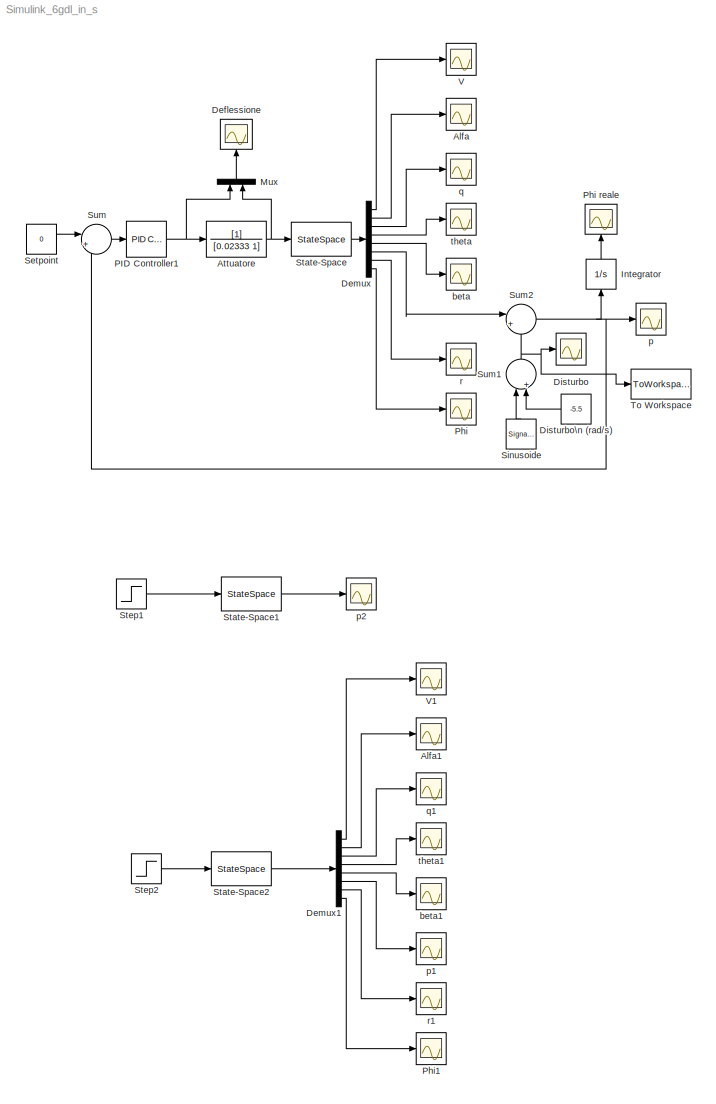
MODEL Simulink_6gdl_in_s
KIND model
BLOCK [Scope] Alfa
  DataFormat = StructureWithTime
  Floating = off
  NumInputPorts = 1
  Ports = [1]
  SID = 9
  SampleTime = 0
  SaveName = ScopeData1
  ZoomMode = yonly
BLOCK [Scope] Alfa1
  DataFormat = StructureWithTime
  Floating = off
  NumInputPorts = 1
  Ports = [1]
  SID = 97
  SampleTime = 0
  SaveName = ScopeData12
  ZoomMode = yonly
BLOCK [TransferFcn] Attuatore
  Denominator = [0.02333 1]
  SID = 50
BLOCK [Scope] Deflessione
  DataFormat = StructureWithTime
  Floating = off
  NumInputPorts = 1
  Ports = [1]
  SID = 76
  SampleTime = 0
  SaveName = ScopeData10
BLOCK [Demux] Demux
  DisplayOption = bar
  Outputs = 8
  Ports = [1, 8]
  SID = 4
BLOCK [Demux] Demux1
  DisplayOption = bar
  Outputs = 8
  Ports = [1, 8]
  SID = 98
BLOCK [Scope] Disturbo
  DataFormat = StructureWithTime
  Floating = off
  LimitDataPoints = off
  NumInputPorts = 1
  Ports = [1]
  SID = 65
  SampleTime = 0
  SaveName = ScopeData9
  TimeRange = 10
  YMax = -5
  YMin = -6
BLOCK [Constant] Disturbo\n (rad//s)
  SID = 55
  Value = -5.5
BLOCK [Integrator] Integrator
  Ports = [1, 1]
  SID = 77
BLOCK [Mux] Mux
  DisplayOption = bar
  Inputs = 2
  Ports = [2, 1]
  SID = 52
BLOCK [Reference] PID Controller1  REF=simulink/Continuous/PID Controller
  AntiWindupMode = clamping
  Controller = PID
  D = 0.0233
  DOutDataTypeStr = Inherit: Inherit via internal rule
  DOutMax = []
  DOutMin = []
  DParamDataTypeStr = Inherit: Inherit via internal rule
  DParamMax = []
  DParamMin = []
  ExternalReset = none
  FilterContinuousStateAttributes = ''
  FilterMethod = Forward Euler
  FilterOutDataTypeStr = Inherit: Inherit via internal rule
  FilterOutMax = []
  FilterOutMin = []
  FilterRTWStateStorageClass = Auto
  FilterStateMustResolveToSignalObject = off
  Form = Parallel
  I = 0.3
  IOutDataTypeStr = Inherit: Inherit via internal rule
  IOutMax = []
  IOutMin = []
  IParamDataTypeStr = Inherit: Inherit via internal rule
  IParamMax = []
  IParamMin = []
  IgnoreLimit = off
  InitialConditionForFilter = 0
  InitialConditionForIntegrator = 0
  InitialConditionSource = internal
  IntegratorContinuousStateAttributes = ''
  IntegratorMethod = Forward Euler
  IntegratorOutDataTypeStr = Inherit: Inherit via internal rule
  IntegratorOutMax = []
  IntegratorOutMin = []
  IntegratorRTWStateStorageClass = Auto
  IntegratorStateMustResolveToSignalObject = off
  Kb = 1
  KbOutDataTypeStr = Inherit: Inherit via internal rule
  KbOutMax = []
  KbOutMin = []
  KbParamDataTypeStr = Inherit: Inherit via internal rule
  KbParamMax = []
  KbParamMin = []
  Kt = 1
  KtOutDataTypeStr = Inherit: Inherit via internal rule
  KtOutMax = []
  KtOutMin = []
  KtParamDataTypeStr = Inherit: Inherit via internal rule
  KtParamMax = []
  KtParamMin = []
  LimitOutput = on
  LinearizeAsGain = off
  LockScale = off
  LowerSaturationLimit = -0.175
  N = 1
  NOutDataTypeStr = Inherit: Inherit via internal rule
  NOutMax = []
  NOutMin = []
  NParamDataTypeStr = Inherit: Inherit via internal rule
  NParamMax = []
  NParamMin = []
  P = 0.07
  POutDataTypeStr = Inherit: Inherit via internal rule
  POutMax = []
  POutMin = []
  PParamDataTypeStr = Inherit: Inherit via internal rule
  PParamMax = []
  PParamMin = []
  Ports = [1, 1]
  RndMeth = Floor
  SID = 53
  SampleTime = 0.02
  SaturateOnIntegerOverflow = off
  SaturationOutDataTypeStr = Inherit: Inherit via back propagation
  SaturationOutMax = []
  SaturationOutMin = []
  SourceBlock = simulink/Continuous/PID Controller
  SourceType = PID 1dof
  SumAccumDataTypeStr = Inherit: Inherit via internal rule
  SumDAccumDataTypeStr = Inherit: Inherit via internal rule
  SumDOutDataTypeStr = Inherit: Inherit via internal rule
  SumDOutMax = []
  SumDOutMin = []
  SumI1AccumDataTypeStr = Inherit: Inherit via internal rule
  SumI1OutDataTypeStr = Inherit: Inherit via internal rule
  SumI1OutMax = []
  SumI1OutMin = []
  SumI2AccumDataTypeStr = Inherit: Inherit via internal rule
  SumI2OutDataTypeStr = Inherit: Inherit via internal rule
  SumI2OutMax = []
  SumI2OutMin = []
  SumI3AccumDataTypeStr = Inherit: Inherit via internal rule
  SumI3OutDataTypeStr = Inherit: Inherit via internal rule
  SumI3OutMax = []
  SumI3OutMin = []
  SumOutDataTypeStr = Inherit: Inherit via internal rule
  SumOutMax = []
  SumOutMin = []
  TimeDomain = Discrete-time
  TrackingMode = off
  UpperSaturationLimit = 0.175
  ZeroCross = on
BLOCK [Scope] Phi
  DataFormat = StructureWithTime
  Floating = off
  NumInputPorts = 1
  Ports = [1]
  SID = 15
  SampleTime = 0
  SaveName = ScopeData7
  ZoomMode = xonly
BLOCK [Scope] Phi reale
  DataFormat = StructureWithTime
  Floating = off
  NumInputPorts = 1
  Ports = [1]
  SID = 78
  SampleTime = 0
  SaveName = ScopeData11
BLOCK [Scope] Phi1
  DataFormat = StructureWithTime
  Floating = off
  NumInputPorts = 1
  Ports = [1]
  SID = 104
  SampleTime = 0
  SaveName = ScopeData15
  ZoomMode = xonly
BLOCK [Constant] Setpoint
  SID = 64
  Value = 0
BLOCK [SignalGenerator] Sinusoide
  Amplitude = 0.1
  Frequency = 2
  Ports = [0, 1]
  SID = 58
BLOCK [StateSpace] State-Space
  A = Ad
  B = Bd
  C = C
  ContinuousStateAttributes = 'Variabili_di_stato'
  D = D
  SID = 1
  X0 = [0;0;0;0;0;0;0;0]
BLOCK [StateSpace] State-Space1
  A = (Clp/Ixap)*(2*Ve/diam)
  B = (Cldelta/Ixap)*(2*Ve/diam)^2
  ContinuousStateAttributes = 'Variabili_di_stato'
  D = 0
  SID = 28
BLOCK [StateSpace] State-Space2
  A = Ad
  B = Bd
  C = C
  ContinuousStateAttributes = 'Variabili_di_stato'
  D = D
  SID = 79
  X0 = [0;0;0;0;0;0;0;0]
BLOCK [Step] Step1
  After = 0.17
  SID = 30
  SampleTime = 0
BLOCK [Step] Step2
  After = 0.17
  SID = 114
  SampleTime = 0
BLOCK [Sum] Sum
  IconShape = round
  InputSameDT = off
  Inputs = |+-
  OutDataTypeStr = Inherit: Inherit via internal rule
  Ports = [2, 1]
  SID = 33
  SaturateOnIntegerOverflow = off
BLOCK [Sum] Sum1
  IconShape = round
  InputSameDT = off
  Inputs = |++
  OutDataTypeStr = Inherit: Inherit via internal rule
  Ports = [2, 1]
  SID = 60
  SaturateOnIntegerOverflow = off
BLOCK [Sum] Sum2
  IconShape = round
  InputSameDT = off
  Inputs = |++
  OutDataTypeStr = Inherit: Inherit via internal rule
  Ports = [2, 1]
  SID = 63
  SaturateOnIntegerOverflow = off
BLOCK [ToWorkspace] To Workspace
  MaxDataPoints = inf
  Ports = [1]
  SID = 117
  SampleTime = -1
  SaveFormat = Structure With Time
  VariableName = simout
BLOCK [Scope] V
  DataFormat = StructureWithTime
  Floating = off
  NumInputPorts = 1
  Ports = [1]
  SID = 2
  SampleTime = 0
  ZoomMode = xonly
BLOCK [Scope] V1
  DataFormat = StructureWithTime
  Floating = off
  NumInputPorts = 1
  Ports = [1]
  SID = 108
  SampleTime = 0
  SaveName = ScopeData16
  ZoomMode = xonly
BLOCK [Scope] beta
  DataFormat = StructureWithTime
  Floating = off
  NumInputPorts = 1
  Ports = [1]
  SID = 12
  SampleTime = 0
  SaveName = ScopeData4
  TimeRange = 50
  YMax = 0.06000000000000001
  YMin = -0.01
  ZoomMode = yonly
BLOCK [Scope] beta1
  DataFormat = StructureWithTime
  Floating = off
  NumInputPorts = 1
  Ports = [1]
  SID = 109
  SampleTime = 0
  SaveName = ScopeData17
  TimeRange = 50
  YMax = 0.06000000000000001
  YMin = -0.01
  ZoomMode = yonly
BLOCK [Scope] p
  DataFormat = StructureWithTime
  Floating = off
  NumInputPorts = 1
  Ports = [1]
  SID = 13
  SampleTime = 0
  SaveName = ScopeData5
BLOCK [Scope] p1
  DataFormat = StructureWithTime
  Floating = off
  NumInputPorts = 1
  Ports = [1]
  SID = 110
  SampleTime = 0
  SaveName = ScopeData18
BLOCK [Scope] p2
  DataFormat = StructureWithTime
  Floating = off
  NumInputPorts = 1
  Ports = [1]
  SID = 32
  SampleTime = 0
  SaveName = ScopeData8
BLOCK [Scope] q
  DataFormat = StructureWithTime
  Floating = off
  NumInputPorts = 1
  Ports = [1]
  SID = 10
  SampleTime = 0
  SaveName = ScopeData2
  TimeRange = 500
  YMax = 1
  YMin = -1
  ZoomMode = xonly
BLOCK [Scope] q1
  DataFormat = StructureWithTime
  Floating = off
  NumInputPorts = 1
  Ports = [1]
  SID = 111
  SampleTime = 0
  SaveName = ScopeData19
  TimeRange = 500
  YMax = 1
  YMin = -1
  ZoomMode = xonly
BLOCK [Scope] r
  DataFormat = StructureWithTime
  Floating = off
  NumInputPorts = 1
  Ports = [1]
  SID = 14
  SampleTime = 0
  SaveName = ScopeData6
  ZoomMode = xonly
BLOCK [Scope] r1
  DataFormat = StructureWithTime
  Floating = off
  NumInputPorts = 1
  Ports = [1]
  SID = 112
  SampleTime = 0
  SaveName = ScopeData20
  ZoomMode = xonly
BLOCK [Scope] theta
  DataFormat = StructureWithTime
  Floating = off
  NumInputPorts = 1
  Ports = [1]
  SID = 11
  SampleTime = 0
  SaveName = ScopeData3
  ZoomMode = xonly
BLOCK [Scope] theta1
  DataFormat = StructureWithTime
  Floating = off
  NumInputPorts = 1
  Ports = [1]
  SID = 113
  SampleTime = 0
  SaveName = ScopeData21
  ZoomMode = xonly
NET Attuatore:1 -> Mux:2, State-Space:1
LINE Demux1:1 -> V1:1
LINE Demux1:2 -> Alfa1:1
LINE Demux1:3 -> q1:1
LINE Demux1:4 -> theta1:1
LINE Demux1:5 -> beta1:1
LINE Demux1:6 -> p1:1
LINE Demux1:7 -> r1:1
LINE Demux1:8 -> Phi1:1
LINE Demux:1 -> V:1
LINE Demux:2 -> Alfa:1
LINE Demux:3 -> q:1
LINE Demux:4 -> theta:1
LINE Demux:5 -> beta:1
LINE Demux:6 -> Sum2:1
LINE Demux:7 -> r:1
LINE Demux:8 -> Phi:1
LINE Disturbo\n (rad//s):1 -> Sum1:2
LINE Integrator:1 -> Phi reale:1
LINE Mux:1 -> Deflessione:1
NET PID Controller1:1 -> Attuatore:1, Mux:1
LINE Setpoint:1 -> Sum:1
LINE Sinusoide:1 -> Sum1:1
LINE State-Space1:1 -> p2:1
LINE State-Space2:1 -> Demux1:1
LINE State-Space:1 -> Demux:1
LINE Step1:1 -> State-Space1:1
LINE Step2:1 -> State-Space2:1
NET Sum1:1 -> Disturbo:1, Sum2:2, To Workspace:1
NET Sum2:1 -> Integrator:1, Sum:2, p:1
LINE Sum:1 -> PID Controller1:1
note: NET lines group one-source signal fan-out (src -> all destinations, sorted); 1:1 wires keep LINE
